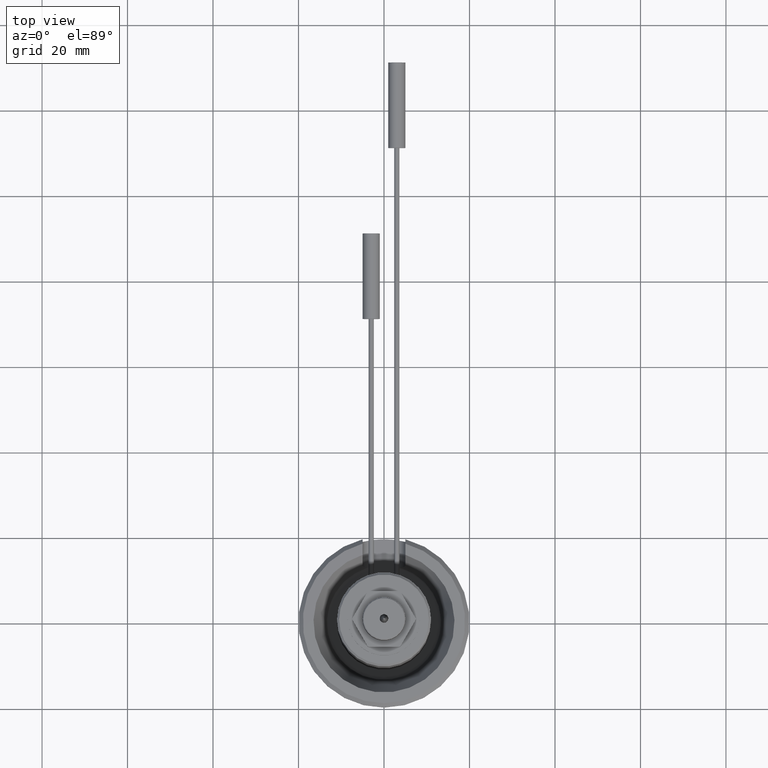
[diagram: clean part render]
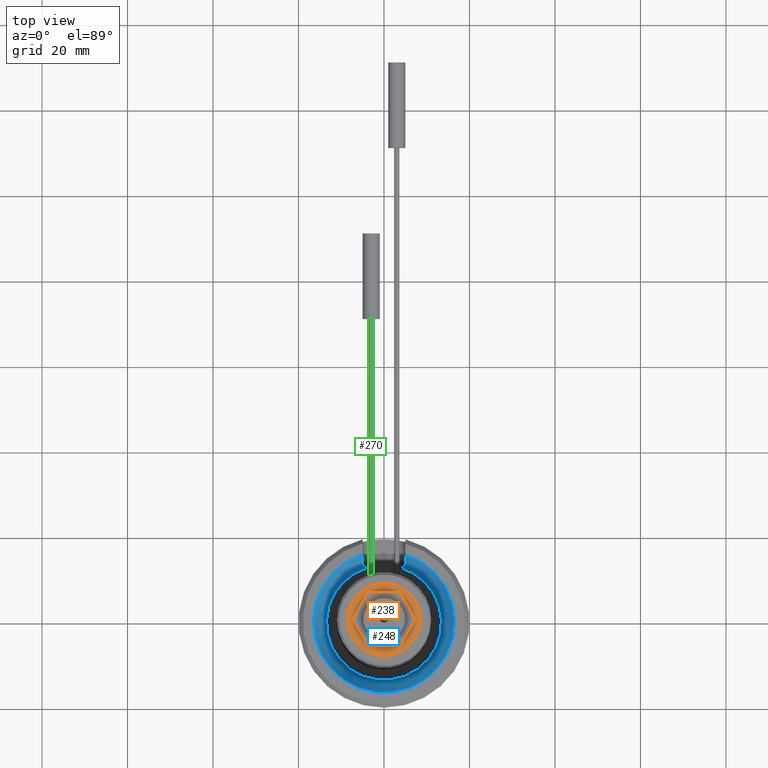
[diagram: same view with three faces highlighted in distinct colors, each labeled with its STEP entity id]
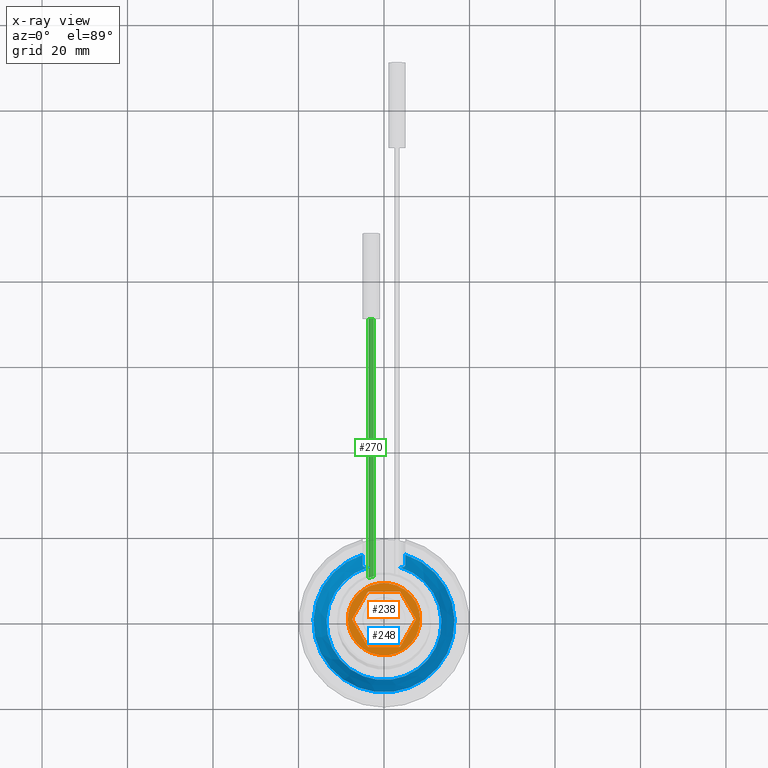
[diagram: x-ray of the same camera — body ghosted, the three highlighted faces saturated]
A machine part, top view with three faces highlighted in distinct colors.
The next image is the same camera in x-ray (body ghosted, the three faces saturated) — at least one of them is partly hidden behind the body in this view.
Their STEP definitions:

[orange] entity #238 — the highlighted planar face has unit normal (0, 0, -1).
#61=PLANE('',#1149);
#105=LINE('',#1928,#149);
#106=LINE('',#1932,#150);
#107=LINE('',#1933,#151);
#108=LINE('',#1934,#152);
#109=LINE('',#1935,#153);
#110=LINE('',#1936,#154);
#149=VECTOR('',#1343,1.);
#150=VECTOR('',#1346,1.);
#151=VECTOR('',#1347,1.);
#152=VECTOR('',#1348,1.);
#153=VECTOR('',#1349,1.);
#154=VECTOR('',#1350,1.);
#238=ADVANCED_FACE('',(#353,#354),#61,.F.);
#353=FACE_BOUND('',#429,.T.);
#354=FACE_BOUND('',#430,.T.);
#429=EDGE_LOOP('',(#579,#580,#581,#582,#583,#584,#585,#586,#587,#588,#589,
#590));
#430=EDGE_LOOP('',(#591));
#579=ORIENTED_EDGE('',*,*,#941,.F.);
#580=ORIENTED_EDGE('',*,*,#954,.T.);
#581=ORIENTED_EDGE('',*,*,#955,.F.);
#582=ORIENTED_EDGE('',*,*,#956,.F.);
#583=ORIENTED_EDGE('',*,*,#936,.F.);
#584=ORIENTED_EDGE('',*,*,#957,.F.);
#585=ORIENTED_EDGE('',*,*,#932,.F.);
#586=ORIENTED_EDGE('',*,*,#958,.T.);
#587=ORIENTED_EDGE('',*,*,#938,.F.);
#588=ORIENTED_EDGE('',*,*,#959,.T.);
#589=ORIENTED_EDGE('',*,*,#945,.F.);
#590=ORIENTED_EDGE('',*,*,#960,.T.);
#591=ORIENTED_EDGE('',*,*,#953,.T.);
#825=VERTEX_POINT('',#1768);
#826=VERTEX_POINT('',#1769);
#827=VERTEX_POINT('',#1774);
#828=VERTEX_POINT('',#1776);
#829=VERTEX_POINT('',#1780);
#830=VERTEX_POINT('',#1781);
#831=VERTEX_POINT('',#1786);
#832=VERTEX_POINT('',#1787);
#833=VERTEX_POINT('',#1792);
#834=VERTEX_POINT('',#1794);
#841=VERTEX_POINT('',#1926);
#842=VERTEX_POINT('',#1929);
#843=VERTEX_POINT('',#1931);
#932=EDGE_CURVE('',#825,#826,#1057,.T.);
#936=EDGE_CURVE('',#827,#828,#1058,.T.);
#938=EDGE_CURVE('',#829,#830,#1059,.T.);
#941=EDGE_CURVE('',#831,#832,#1060,.T.);
#945=EDGE_CURVE('',#833,#834,#1061,.T.);
#953=EDGE_CURVE('',#841,#841,#1066,.T.);
#954=EDGE_CURVE('',#831,#842,#105,.T.);
#955=EDGE_CURVE('',#843,#842,#1067,.T.);
#956=EDGE_CURVE('',#828,#843,#106,.T.);
#957=EDGE_CURVE('',#826,#827,#107,.T.);
#958=EDGE_CURVE('',#825,#830,#108,.T.);
#959=EDGE_CURVE('',#829,#834,#109,.T.);
#960=EDGE_CURVE('',#833,#832,#110,.T.);
#1057=CIRCLE('',#1130,7.45);
#1058=CIRCLE('',#1132,7.45);
#1059=CIRCLE('',#1134,7.45);
#1060=CIRCLE('',#1136,7.45);
#1061=CIRCLE('',#1138,7.45);
#1066=CIRCLE('',#1146,8.45);
#1067=CIRCLE('',#1148,7.45);
#1130=AXIS2_PLACEMENT_3D('',#1767,#1297,#1298);
#1132=AXIS2_PLACEMENT_3D('',#1775,#1304,#1305);
#1134=AXIS2_PLACEMENT_3D('',#1779,#1309,#1310);
#1136=AXIS2_PLACEMENT_3D('',#1785,#1315,#1316);
#1138=AXIS2_PLACEMENT_3D('',#1793,#1322,#1323);
#1146=AXIS2_PLACEMENT_3D('',#1925,#1339,#1340);
#1148=AXIS2_PLACEMENT_3D('',#1930,#1344,#1345);
#1149=AXIS2_PLACEMENT_3D('',#1937,#1351,#1352);
#1297=DIRECTION('',(0.,0.,1.));
#1298=DIRECTION('',(1.,0.,0.));
#1304=DIRECTION('',(0.,0.,1.));
#1305=DIRECTION('',(1.,0.,0.));
#1309=DIRECTION('',(0.,0.,1.));
#1310=DIRECTION('',(1.,0.,0.));
#1315=DIRECTION('',(0.,0.,1.));
#1316=DIRECTION('',(1.,0.,0.));
#1322=DIRECTION('',(0.,0.,1.));
#1323=DIRECTION('',(1.,0.,0.));
#1339=DIRECTION('',(0.,0.,1.));
#1340=DIRECTION('',(1.,0.,0.));
#1343=DIRECTION('',(-1.,-2.73999136442525E-15,0.));
#1344=DIRECTION('',(0.,0.,1.));
#1345=DIRECTION('',(1.,0.,0.));
#1346=DIRECTION('',(0.500000000000003,-0.866025403784437,0.));
#1347=DIRECTION('',(-0.499999999999996,-0.866025403784441,0.));
#1348=DIRECTION('',(1.,5.12259255088199E-15,0.));
#1349=DIRECTION('',(0.500000000000005,-0.866025403784436,0.));
#1350=DIRECTION('',(-0.499999999999994,-0.866025403784442,0.));
#1351=DIRECTION('',(0.,0.,-1.));
#1352=DIRECTION('',(-1.,0.,0.));
#1767=CARTESIAN_POINT('',(0.,0.,60.5000000000001));
#1768=CARTESIAN_POINT('',(-3.6403983298535,6.49999999999999,60.5000000000001));
#1769=CARTESIAN_POINT('',(-3.80896595967212,6.40267743354755,60.5));
#1774=CARTESIAN_POINT('',(-7.44936428952559,0.0973225664524279,60.5000000000001));
#1775=CARTESIAN_POINT('',(0.,0.,60.5000000000001));
#1776=CARTESIAN_POINT('',(-7.44936428952559,-0.0973225664524481,60.5));
#1779=CARTESIAN_POINT('',(0.,0.,60.5000000000001));
#1780=CARTESIAN_POINT('',(3.80896595967208,6.40267743354757,60.5000000000001));
#1781=CARTESIAN_POINT('',(3.64039832985346,6.50000000000001,60.5));
#1785=CARTESIAN_POINT('',(0.,0.,60.5000000000001));
#1786=CARTESIAN_POINT('',(3.64039832985348,-6.49999999999998,60.5));
#1787=CARTESIAN_POINT('',(3.80896595967214,-6.40267743354754,60.5));
#1792=CARTESIAN_POINT('',(7.44936428952559,-0.0973225664524036,60.5000000000001));
#1793=CARTESIAN_POINT('',(0.,0.,60.5000000000001));
#1794=CARTESIAN_POINT('',(7.44936428952559,0.0973225664524678,60.5));
#1925=CARTESIAN_POINT('',(0.,0.,60.5000000000001));
#1926=CARTESIAN_POINT('',(8.45,0.,60.5000000000001));
#1928=CARTESIAN_POINT('',(3.64039832985348,-6.49999999999998,60.5));
#1929=CARTESIAN_POINT('',(-3.64039832985348,-6.5,60.5));
#1930=CARTESIAN_POINT('',(0.,0.,60.5000000000001));
#1931=CARTESIAN_POINT('',(-3.8089659596721,-6.40267743354756,60.5000000000001));
#1932=CARTESIAN_POINT('',(-7.44936428952559,-0.0973225664524513,60.5));
#1933=CARTESIAN_POINT('',(-3.80896595967212,6.40267743354755,60.5));
#1934=CARTESIAN_POINT('',(-3.64039832985349,6.49999999999997,60.5));
#1935=CARTESIAN_POINT('',(3.80896595967208,6.40267743354756,60.5));
#1936=CARTESIAN_POINT('',(7.44936428952557,-0.0973225664524033,60.5));
#1937=CARTESIAN_POINT('',(-8.45,0.,60.5000000000001));

[blue] entity #248 — the highlighted conical surface has half-angle 18.76 deg.
#193=FACE_OUTER_BOUND('',#447,.T.);
#248=ADVANCED_FACE('',(#193),#301,.F.);
#301=CONICAL_SURFACE('',#1172,13.4573329734641,18.7599999999998);
#325=B_SPLINE_CURVE_WITH_KNOTS('',3,(#2027,#2028,#2029,#2030),
 .UNSPECIFIED.,.F.,.F.,(4,4),(0.,1.),.UNSPECIFIED.);
#326=B_SPLINE_CURVE_WITH_KNOTS('',3,(#2035,#2036,#2037,#2038),
 .UNSPECIFIED.,.F.,.F.,(4,4),(0.,1.),.UNSPECIFIED.);
#327=B_SPLINE_CURVE_WITH_KNOTS('',3,(#2040,#2041,#2042,#2043,#2044,#2045,
#2046,#2047,#2048,#2049),.UNSPECIFIED.,.F.,.F.,(4,3,3,4),(0.,0.339823540983943,
0.681058204121285,1.),.UNSPECIFIED.);
#328=B_SPLINE_CURVE_WITH_KNOTS('',3,(#2050,#2051,#2052,#2053,#2054,#2055,
#2056,#2057,#2058,#2059),.UNSPECIFIED.,.F.,.F.,(4,3,3,4),(0.,0.323201637820959,
0.646555919093283,1.),.UNSPECIFIED.);
#447=EDGE_LOOP('',(#619,#620,#621,#622,#623,#624));
#619=ORIENTED_EDGE('',*,*,#978,.F.);
#620=ORIENTED_EDGE('',*,*,#979,.T.);
#621=ORIENTED_EDGE('',*,*,#980,.F.);
#622=ORIENTED_EDGE('',*,*,#981,.T.);
#623=ORIENTED_EDGE('',*,*,#976,.T.);
#624=ORIENTED_EDGE('',*,*,#982,.T.);
#854=VERTEX_POINT('',#2010);
#855=VERTEX_POINT('',#2012);
#856=VERTEX_POINT('',#2031);
#857=VERTEX_POINT('',#2032);
#858=VERTEX_POINT('',#2034);
#859=VERTEX_POINT('',#2039);
#976=EDGE_CURVE('',#855,#854,#1080,.T.);
#978=EDGE_CURVE('',#856,#857,#325,.T.);
#979=EDGE_CURVE('',#856,#858,#1081,.T.);
#980=EDGE_CURVE('',#859,#858,#326,.T.);
#981=EDGE_CURVE('',#859,#855,#327,.T.);
#982=EDGE_CURVE('',#854,#857,#328,.T.);
#1080=CIRCLE('',#1169,13.4573329734641);
#1081=CIRCLE('',#1171,16.4996646888082);
#1169=AXIS2_PLACEMENT_3D('',#2011,#1393,#1394);
#1171=AXIS2_PLACEMENT_3D('',#2033,#1397,#1398);
#1172=AXIS2_PLACEMENT_3D('',#2060,#1399,#1400);
#1393=DIRECTION('',(0.,0.,-1.));
#1394=DIRECTION('',(1.,0.,0.));
#1397=DIRECTION('',(0.,0.,1.));
#1398=DIRECTION('',(1.,0.,0.));
#1399=DIRECTION('',(0.,0.,1.));
#1400=DIRECTION('',(1.,0.,2.25986598766589E-16));
#2010=CARTESIAN_POINT('',(-3.72097542149328,12.9326777069301,16.0427162152864));
#2011=CARTESIAN_POINT('',(0.,0.,16.0427162152864));
#2012=CARTESIAN_POINT('',(3.72097542149328,12.9326777069301,16.0427162152864));
#2027=CARTESIAN_POINT('',(-5.,15.7238333380606,25.));
#2028=CARTESIAN_POINT('',(-5.,14.9509270720782,22.8313977173449));
#2029=CARTESIAN_POINT('',(-5.,14.1735049763933,20.6643664506033));
#2030=CARTESIAN_POINT('',(-5.,13.3887916455741,18.5));
#2031=CARTESIAN_POINT('',(-5.,15.7238333380606,25.));
#2032=CARTESIAN_POINT('',(-5.,13.3887916455741,18.5));
#2033=CARTESIAN_POINT('',(0.,0.,25.));
#2034=CARTESIAN_POINT('',(5.,15.7238333380606,25.));
#2035=CARTESIAN_POINT('',(5.,13.3887916455741,18.5));
#2036=CARTESIAN_POINT('',(5.,14.1734998842274,20.6643524055853));
#2037=CARTESIAN_POINT('',(5.,14.9509132169483,22.8313588429463));
#2038=CARTESIAN_POINT('',(5.,15.7238333380606,25.));
#2039=CARTESIAN_POINT('',(5.,13.3887916455741,18.5));
#2040=CARTESIAN_POINT('',(5.,13.3887916455741,18.5));
#2041=CARTESIAN_POINT('',(5.,13.2759832467154,18.1888561666447));
#2042=CARTESIAN_POINT('',(4.95019343195471,13.1781053538942,17.8671666394606));
#2043=CARTESIAN_POINT('',(4.84916539594733,13.1045059535723,17.5607148747392));
#2044=CARTESIAN_POINT('',(4.74787858248229,13.0307180326531,17.2534781515874));
#2045=CARTESIAN_POINT('',(4.59170950224442,12.9795195815167,16.953256218878));
#2046=CARTESIAN_POINT('',(4.39212660040743,12.9526195546608,16.6895496892698));
#2047=CARTESIAN_POINT('',(4.20519581128553,12.9274247949831,16.4425602466746));
#2048=CARTESIAN_POINT('',(3.97539246913384,12.9224518545702,16.2208989260185));
#2049=CARTESIAN_POINT('',(3.72097542149328,12.9326777069301,16.0427162152864));
#2050=CARTESIAN_POINT('',(-3.72097542149328,12.9326777069301,16.0427162152864));
#2051=CARTESIAN_POINT('',(-3.97868984944148,12.9223193220827,16.2232082687571));
#2052=CARTESIAN_POINT('',(-4.21117103456396,12.9275712022819,16.4483798259103));
#2053=CARTESIAN_POINT('',(-4.39947811764517,12.9536234775892,16.6993043669343));
#2054=CARTESIAN_POINT('',(-4.58785706665572,12.9796856955442,16.950324671352));
#2055=CARTESIAN_POINT('',(-4.73700837647282,13.0275616756409,17.2337883429949));
#2056=CARTESIAN_POINT('',(-4.83697079770243,13.0959008858126,17.5245018231777));
#2057=CARTESIAN_POINT('',(-4.94610794272809,13.1705123868117,17.8418974890425));
#2058=CARTESIAN_POINT('',(-5.,13.2715980175315,18.1767609943685));
#2059=CARTESIAN_POINT('',(-5.,13.3887916455741,18.5));
#2060=CARTESIAN_POINT('',(0.,0.,16.0427162152864));

[green] entity #270 — the highlighted cylindrical surface (bore or boss wall) has radius 0.6 mm, axis along (0, -1, 0).
#50=CYLINDRICAL_SURFACE('',#1217,0.6);
#270=ADVANCED_FACE('',(#389,#390),#50,.T.);
#321=B_SPLINE_CURVE_WITH_KNOTS('',3,(#1801,#1802,#1803,#1804,#1805,#1806,
#1807,#1808,#1809,#1810,#1811,#1812,#1813,#1814,#1815,#1816,#1817,#1818,
#1819,#1820,#1821,#1822,#1823,#1824,#1825,#1826,#1827,#1828,#1829,#1830,
#1831,#1832,#1833,#1834,#1835,#1836,#1837,#1838,#1839,#1840,#1841,#1842,
#1843,#1844,#1845,#1846,#1847,#1848,#1849,#1850,#1851,#1852,#1853,#1854,
#1855,#1856,#1857,#1858),.UNSPECIFIED.,.T.,.F.,(1,3,3,3,3,3,3,3,3,3,3,3,
3,3,3,3,3,3,3,3,3,1),(-0.033476065960702,0.,0.0569276184208162,0.11388798171723,
0.170189178404947,0.223994773815215,0.275023318518955,0.32479447673683,
0.375435942673917,0.428444094596675,0.484019015101014,0.541000746772207,
0.597629402742916,0.652691800182208,0.705997861087889,0.758026453272304,
0.809447894307852,0.860920961920237,0.913080990616137,0.966523934039298,
1.,1.05692761842082),.UNSPECIFIED.);
#389=FACE_BOUND('',#480,.T.);
#390=FACE_BOUND('',#481,.T.);
#480=EDGE_LOOP('',(#710));
#481=EDGE_LOOP('',(#711));
#710=ORIENTED_EDGE('',*,*,#1037,.F.);
#711=ORIENTED_EDGE('',*,*,#949,.T.);
#837=VERTEX_POINT('',#1859);
#897=VERTEX_POINT('',#2234);
#949=EDGE_CURVE('',#837,#837,#321,.T.);
#1037=EDGE_CURVE('',#897,#897,#1104,.T.);
#1104=CIRCLE('',#1216,0.6);
#1216=AXIS2_PLACEMENT_3D('',#2233,#1507,#1508);
#1217=AXIS2_PLACEMENT_3D('',#2235,#1509,#1510);
#1507=DIRECTION('',(0.,1.,0.));
#1508=DIRECTION('',(1.,0.,0.));
#1509=DIRECTION('',(0.,-1.,0.));
#1510=DIRECTION('',(0.,0.,-1.));
#1801=CARTESIAN_POINT('',(-2.99999999999991,10.5830052442584,17.8999999999996));
#1802=CARTESIAN_POINT('',(-3.06981681712979,10.5632140368881,17.8999999999996));
#1803=CARTESIAN_POINT('',(-3.14038450659972,10.5424227737473,17.9124970988472));
#1804=CARTESIAN_POINT('',(-3.20591448775793,10.5224575217571,17.9364405765748));
#1805=CARTESIAN_POINT('',(-3.27146261720385,10.5024867404637,17.9603906853607));
#1806=CARTESIAN_POINT('',(-3.33382981085157,10.482784709257,17.9964888354275));
#1807=CARTESIAN_POINT('',(-3.3876192775582,10.4653731720525,18.0420138695711));
#1808=CARTESIAN_POINT('',(-3.44075567997196,10.4481730303855,18.0869861788774));
#1809=CARTESIAN_POINT('',(-3.48705359081985,10.4327279905899,18.1425344552966));
#1810=CARTESIAN_POINT('',(-3.5219399223933,10.4209375385832,18.2040629840455));
#1811=CARTESIAN_POINT('',(-3.55529059017036,10.4096660912832,18.262883084313));
#1812=CARTESIAN_POINT('',(-3.57915482046363,10.4014329403697,18.3289382027011));
#1813=CARTESIAN_POINT('',(-3.59097724228668,10.39734977989,18.3963375714194));
#1814=CARTESIAN_POINT('',(-3.60220237963041,10.39347290611,18.4603318343604));
#1815=CARTESIAN_POINT('',(-3.60289005001189,10.3932330618097,18.5273519849324));
#1816=CARTESIAN_POINT('',(-3.59296868398482,10.396661773661,18.5915867884212));
#1817=CARTESIAN_POINT('',(-3.58328137018419,10.4000095997109,18.6543062462681));
#1818=CARTESIAN_POINT('',(-3.56326033680526,10.4069246310301,18.716062895263));
#1819=CARTESIAN_POINT('',(-3.53478046430455,10.4165890323642,18.7720475234187));
#1820=CARTESIAN_POINT('',(-3.5057920601981,10.4264259995526,18.8290318032705));
#1821=CARTESIAN_POINT('',(-3.46732907570817,10.4393411650476,18.8815408372879));
#1822=CARTESIAN_POINT('',(-3.42260264746866,10.4539844613209,18.9259190091467));
#1823=CARTESIAN_POINT('',(-3.37580324197967,10.4693064440271,18.9723540172935));
#1824=CARTESIAN_POINT('',(-3.32095149567916,10.4868989700489,19.0111162295878));
#1825=CARTESIAN_POINT('',(-3.26232257871943,10.5051059676891,19.0396173317213));
#1826=CARTESIAN_POINT('',(-3.20090536269367,10.524178861497,19.0694739014394));
#1827=CARTESIAN_POINT('',(-3.1336983167243,10.5444253513799,19.088868258931));
#1828=CARTESIAN_POINT('',(-3.06598618430007,10.5640772771539,19.0963604811534));
#1829=CARTESIAN_POINT('',(-2.99661772046592,10.5842099159223,19.1040359733831));
#1830=CARTESIAN_POINT('',(-2.92478068762943,10.6042751642352,19.0994009585023));
#1831=CARTESIAN_POINT('',(-2.85653800704422,10.622626352005,19.0825964783426));
#1832=CARTESIAN_POINT('',(-2.78874380432905,10.6408569392718,19.0659024340187));
#1833=CARTESIAN_POINT('',(-2.72256330115455,10.6579214838165,19.0366771898524));
#1834=CARTESIAN_POINT('',(-2.66401663073763,10.6725355652325,18.9971068050018));
#1835=CARTESIAN_POINT('',(-2.60707805025483,10.6867482445353,18.9586232921649));
#1836=CARTESIAN_POINT('',(-2.55573615457011,10.6990643438209,18.9092216508164));
#1837=CARTESIAN_POINT('',(-2.51483547133773,10.7086695042895,18.8530090368927));
#1838=CARTESIAN_POINT('',(-2.47521965706406,10.7179729247491,18.798562306495));
#1839=CARTESIAN_POINT('',(-2.44427888225215,10.7250125539229,18.7361680065076));
#1840=CARTESIAN_POINT('',(-2.42492917387903,10.7293857467084,18.6711535712293));
#1841=CARTESIAN_POINT('',(-2.40603383409633,10.733656248466,18.6076658006813));
#1842=CARTESIAN_POINT('',(-2.39766002012662,10.7355128144675,18.5399010011442));
#1843=CARTESIAN_POINT('',(-2.40058147454186,10.7348595046272,18.4735910746605));
#1844=CARTESIAN_POINT('',(-2.40346989220308,10.7342135826266,18.4080310023314));
#1845=CARTESIAN_POINT('',(-2.41746976120564,10.7310967887802,18.3420888473413));
#1846=CARTESIAN_POINT('',(-2.44132064172829,10.725667975668,18.2811910087746));
#1847=CARTESIAN_POINT('',(-2.46520089217958,10.7202324775258,18.2202181807259));
#1848=CARTESIAN_POINT('',(-2.49958709380877,10.712325527574,18.162649352121));
#1849=CARTESIAN_POINT('',(-2.5414784747202,10.7023776406242,18.1130141981221));
#1850=CARTESIAN_POINT('',(-2.58393260100764,10.6922961193263,18.0627122732317));
#1851=CARTESIAN_POINT('',(-2.63520668837192,10.6798406558194,18.0192069291159));
#1852=CARTESIAN_POINT('',(-2.69099725920307,10.6657645647633,17.9856875403221));
#1853=CARTESIAN_POINT('',(-2.74815439445356,10.6513436863191,17.9513471094883));
#1854=CARTESIAN_POINT('',(-2.81154660528336,10.63483306504,17.9265595067595));
#1855=CARTESIAN_POINT('',(-2.87606909114748,10.6173549711284,17.912938563836));
#1856=CARTESIAN_POINT('',(-2.9168172067377,10.6063169681521,17.9043364811781));
#1857=CARTESIAN_POINT('',(-2.95854912963758,10.5947554615376,17.9));
#1858=CARTESIAN_POINT('',(-2.99999999999991,10.5830052442584,17.8999999999996));
#1859=CARTESIAN_POINT('',(-2.99999999999991,10.5830052442584,17.8999999999996));
#2233=CARTESIAN_POINT('',(-3.,71.,18.5));
#2234=CARTESIAN_POINT('',(-2.4,71.,18.5));
#2235=CARTESIAN_POINT('',(-3.,71.,18.5));